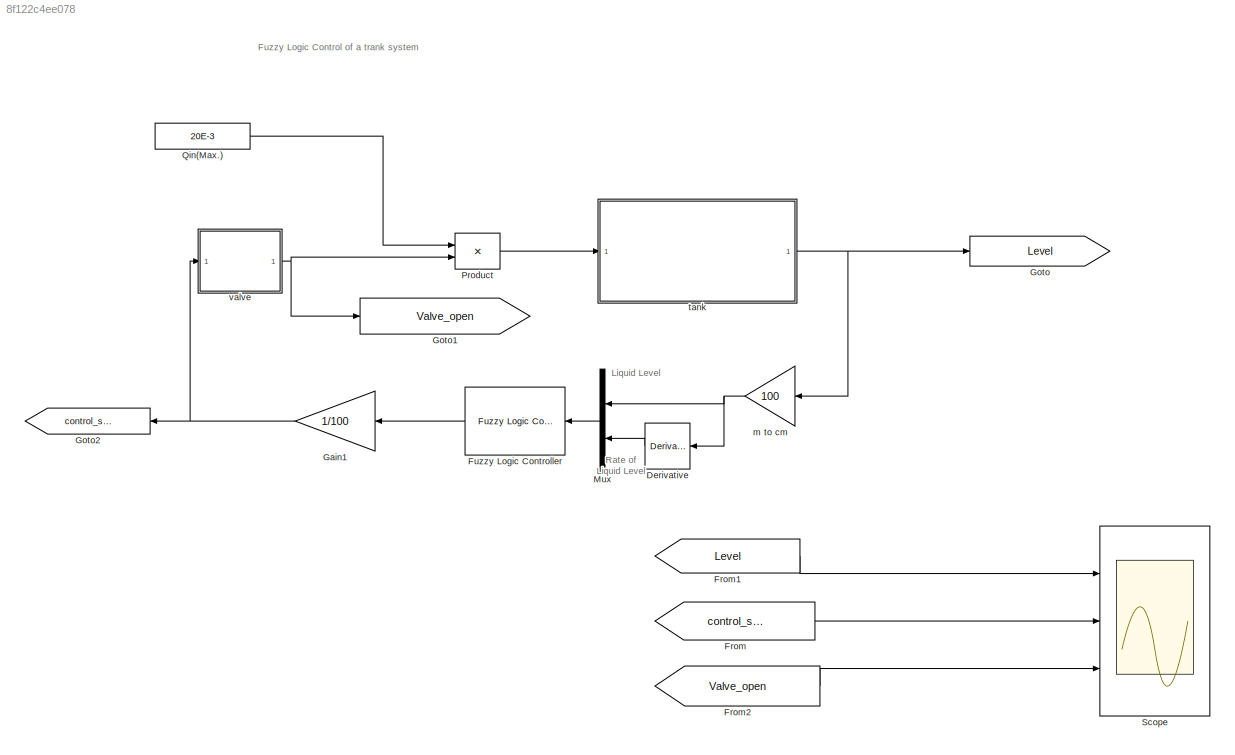
MODEL slx_8f122c4ee078
KIND model
CONFIG AbsTol = auto
CONFIG FixedStep = auto
CONFIG MaxStep = auto
CONFIG MinStep = auto
CONFIG RelTol = 1e-3
CONFIG SampleTimeConstraint = Unconstrained
CONFIG Solver = VariableStepAuto
CONFIG SolverMode = Auto
CONFIG SolverName = VariableStepAuto
CONFIG StartTime = 0.0
CONFIG StopTime = 100.0
BLOCK [Derivative] Derivative
BLOCK [From] From
  GotoTag = control_signal
BLOCK [From] From1
  GotoTag = Level
BLOCK [From] From2
  GotoTag = Valve_open
BLOCK [Reference] Fuzzy Logic Controller	  REF=fuzblock/Fuzzy Logic   (lib defined in mdl_858b3b3e7478)
Controller
  Ports = [1, 1]
  SourceBlock = fuzblock/Fuzzy Logic \nController
  SourceType = FIS
BLOCK [Gain] Gain1 
  Gain = 1/100
  OutDataTypeStr = Inherit: Inherit via internal rule
  ParamDataTypeStr = Inherit: Inherit via internal rule
  SaturateOnIntegerOverflow = off
BLOCK [Goto] Goto
  GotoTag = Level
BLOCK [Goto] Goto1
  GotoTag = Valve_open
BLOCK [Goto] Goto2
  GotoTag = control_signal
BLOCK [Mux] Mux
  DisplayOption = bar
  Inputs = 2
  Ports = [2, 1]
BLOCK [Product] Product
  InputSameDT = off
  OutDataTypeStr = Inherit: Inherit via internal rule
  Ports = [2, 1]
  RndMeth = Floor
  SaturateOnIntegerOverflow = off
BLOCK [Constant] Qin(Max.)
  Value = 20E-3
BLOCK [Scope] Scope
  NumInputPorts = 3
  Ports = [3]
  ScopeSpecificationString = Simulink.scopes.TimeScopeBlockCfg('CurrentConfiguration', extmgr.ConfigurationSet(extmgr.Configuration('Core','General UI',true),extmgr.Configuration('Core','Source UI',true),extmgr.Configuration('Sources','WiredSimulink',true),extmgr.Configuration('Visuals','Time Domain',true,'SerializedDisplays',{struct('MinYLimReal','-0.00667','MaxYLimReal','0.06004','YLabelReal','','MinYLimMag','0.00000','MaxY...<+3048ch>
BLOCK [Gain] m to cm
  Gain = 100
  OutDataTypeStr = Inherit: Inherit via internal rule
  ParamDataTypeStr = Inherit: Inherit via internal rule
  SaturateOnIntegerOverflow = off
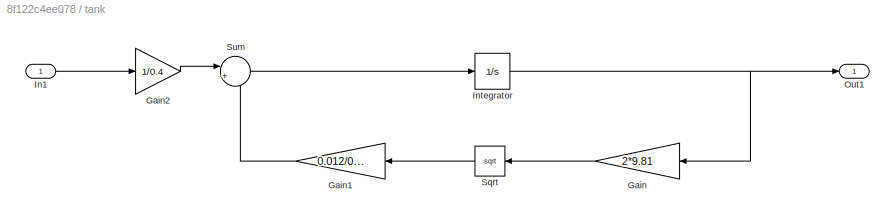
BLOCK [SubSystem] tank
  Ports = [1, 1]
  RequestExecContextInheritance = off
  Variant = off
BLOCK [Gain] tank/Gain
  Gain = 2*9.81
  OutDataTypeStr = Inherit: Inherit via internal rule
  ParamDataTypeStr = Inherit: Inherit via internal rule
  SaturateOnIntegerOverflow = off
BLOCK [Gain] tank/Gain1
  Gain = 0.012/0.4
  OutDataTypeStr = Inherit: Inherit via internal rule
  ParamDataTypeStr = Inherit: Inherit via internal rule
  SaturateOnIntegerOverflow = off
BLOCK [Gain] tank/Gain2
  Gain = 1/0.4
  OutDataTypeStr = Inherit: Inherit via internal rule
  ParamDataTypeStr = Inherit: Inherit via internal rule
  SaturateOnIntegerOverflow = off
BLOCK [Inport] tank/In1
  IconDisplay = Port number
BLOCK [Integrator] tank/Integrator
  Ports = [1, 1]
BLOCK [Outport] tank/Out1
  IconDisplay = Port number
BLOCK [Sqrt] tank/Sqrt
BLOCK [Sum] tank/Sum
  IconShape = round
  InputSameDT = off
  Inputs = |+-
  OutDataTypeStr = Inherit: Inherit via internal rule
  Ports = [2, 1]
  SaturateOnIntegerOverflow = off
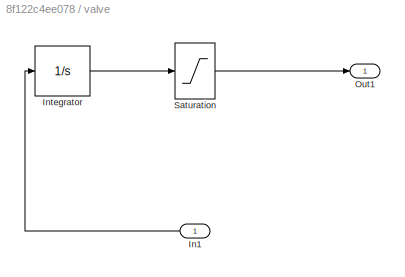
BLOCK [SubSystem] valve
  Ports = [1, 1]
  RequestExecContextInheritance = off
  Variant = off
BLOCK [Inport] valve/In1
  IconDisplay = Port number
BLOCK [Integrator] valve/Integrator
  Ports = [1, 1]
BLOCK [Outport] valve/Out1
  IconDisplay = Port number
BLOCK [Saturate] valve/Saturation
  InputPortMap = u0
  LowerLimit = 0
  Ports = [1, 1]
  UpperLimit = 1
ANNOTATION (root): Fuzzy Logic Control of a trank system
ANNOTATION (root): Liquid Level
ANNOTATION (root): Rate of Liquid Level
LINE Derivative:1 -> Mux:2
LINE From1:1 -> Scope:1
LINE From2:1 -> Scope:3
LINE From:1 -> Scope:2
LINE Fuzzy Logic Controller	:1 -> Gain1 :1
NET Gain1 :1 -> Goto2:1, valve:1
LINE Mux:1 -> Fuzzy Logic Controller	:1
LINE Product:1 -> tank:1
LINE Qin(Max.):1 -> Product:1
NET m to cm:1 -> Derivative:1, Mux:1
LINE tank/Gain1:1 -> tank/Sum:2
LINE tank/Gain2:1 -> tank/Sum:1
LINE tank/Gain:1 -> tank/Sqrt:1
LINE tank/In1:1 -> tank/Gain2:1
NET tank/Integrator:1 -> tank/Gain:1, tank/Out1:1
LINE tank/Sqrt:1 -> tank/Gain1:1
LINE tank/Sum:1 -> tank/Integrator:1
NET tank:1 -> Goto:1, m to cm:1
LINE valve/In1:1 -> valve/Integrator:1
LINE valve/Integrator:1 -> valve/Saturation:1
LINE valve/Saturation:1 -> valve/Out1:1
NET valve:1 -> Goto1:1, Product:2
note: NET lines group one-source signal fan-out (src -> all destinations, sorted); 1:1 wires keep LINE
